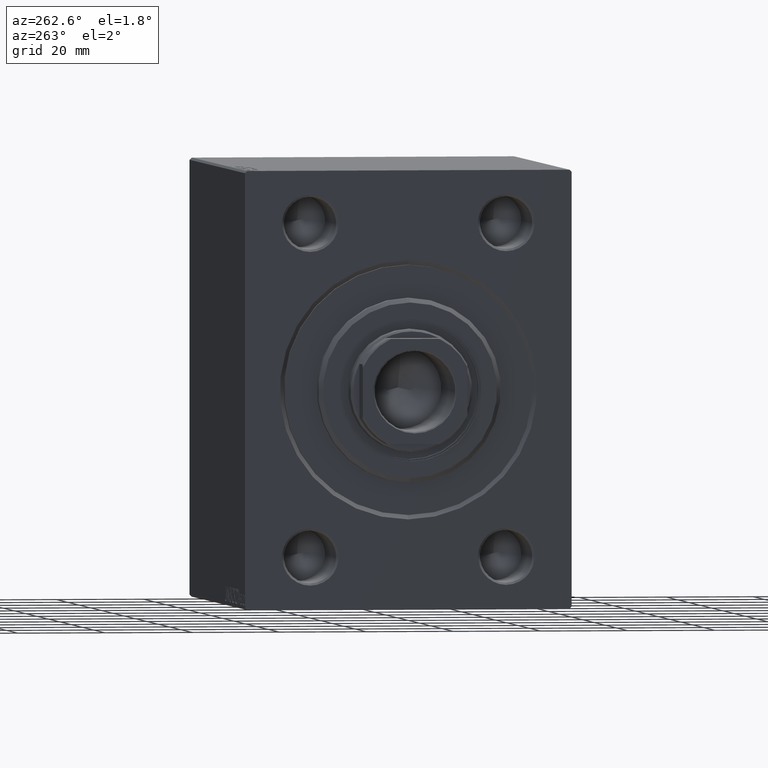
[diagram: clean part render]
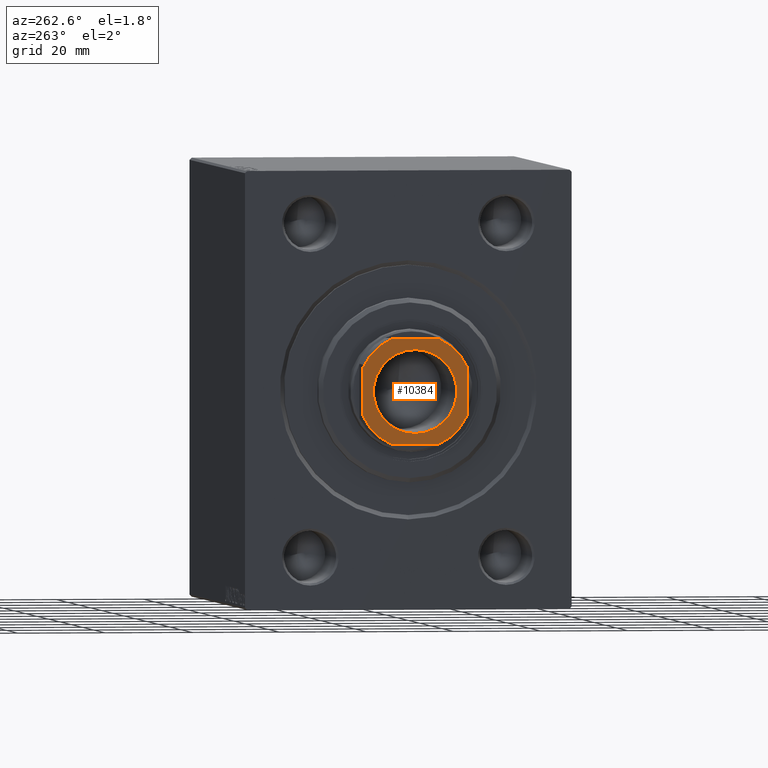
[diagram: same view with one face highlighted and labeled with its STEP entity id]
A machine part, auxiliary view. The second image highlights one B-rep face of the part: STEP entity #10384.
In plain terms, the highlighted planar face has unit normal (-1, 0, 0).
Its self-contained STEP definition (entity closure, byte-faithful):
#825 = CARTESIAN_POINT ( 'NONE',  ( 0.000000000000000000, 0.000000000000000000, 96.00000000000000000 ) ) ;
#1473 = CARTESIAN_POINT ( 'NONE',  ( 5.499090833947041901, 11.99999999999999645, 96.00000000000000000 ) ) ;
#1597 = PLANE ( 'NONE',  #25537 ) ;
#2958 = ORIENTED_EDGE ( 'NONE', *, *, #20635, .T. ) ;
#3075 = VERTEX_POINT ( 'NONE', #3188 ) ;
#3188 = CARTESIAN_POINT ( 'NONE',  ( -12.00000000000000000, -5.499090833947057888, 96.00000000000000000 ) ) ;
#3456 = VECTOR ( 'NONE', #4051, 1000.000000000000000 ) ;
#4051 = DIRECTION ( 'NONE',  ( -2.168404344971008868E-16, 1.000000000000000000, -0.000000000000000000 ) ) ;
#6151 = CARTESIAN_POINT ( 'NONE',  ( 9.549999999999988276, 0.000000000000000000, 96.00000000000000000 ) ) ;
#6208 = DIRECTION ( 'NONE',  ( 1.000000000000000000, 0.000000000000000000, 0.000000000000000000 ) ) ;
#6570 = ORIENTED_EDGE ( 'NONE', *, *, #41192, .T. ) ;
#7020 = LINE ( 'NONE', #37173, #13792 ) ;
#7045 = VERTEX_POINT ( 'NONE', #28082 ) ;
#7313 = AXIS2_PLACEMENT_3D ( 'NONE', #30472, #10008, #44182 ) ;
#7635 = AXIS2_PLACEMENT_3D ( 'NONE', #22692, #39561, #15704 ) ;
#7761 = EDGE_CURVE ( 'NONE', #28794, #7045, #9666, .T. ) ;
#8047 = LINE ( 'NONE', #35260, #44138 ) ;
#8959 = AXIS2_PLACEMENT_3D ( 'NONE', #15480, #29438, #32579 ) ;
#9594 = CARTESIAN_POINT ( 'NONE',  ( -11.99999999999999822, -12.00000000000000355, 96.00000000000000000 ) ) ;
#9666 = CIRCLE ( 'NONE', #8959, 13.20000000000000995 ) ;
#9734 = CIRCLE ( 'NONE', #34851, 13.20000000000002238 ) ;
#9776 = ORIENTED_EDGE ( 'NONE', *, *, #28263, .T. ) ;
#10008 = DIRECTION ( 'NONE',  ( -0.000000000000000000, 0.000000000000000000, 1.000000000000000000 ) ) ;
#10384 = ADVANCED_FACE ( 'NONE', ( #29040, #32627 ), #1597, .T. ) ;
#10598 = DIRECTION ( 'NONE',  ( -1.000000000000000000, -0.000000000000000000, -0.000000000000000000 ) ) ;
#11485 = ORIENTED_EDGE ( 'NONE', *, *, #41861, .T. ) ;
#11952 = VERTEX_POINT ( 'NONE', #40718 ) ;
#12309 = CARTESIAN_POINT ( 'NONE',  ( -5.499090833947052559, -12.00000000000000355, 96.00000000000000000 ) ) ;
#12733 = CARTESIAN_POINT ( 'NONE',  ( 0.000000000000000000, 0.000000000000000000, 96.00000000000000000 ) ) ;
#13132 = CARTESIAN_POINT ( 'NONE',  ( 11.99999999999999645, 11.99999999999999645, 96.00000000000000000 ) ) ;
#13792 = VECTOR ( 'NONE', #10598, 1000.000000000000000 ) ;
#14439 = VERTEX_POINT ( 'NONE', #12309 ) ;
#15480 = CARTESIAN_POINT ( 'NONE',  ( 0.000000000000000000, 0.000000000000000000, 96.00000000000000000 ) ) ;
#15629 = CARTESIAN_POINT ( 'NONE',  ( -5.499090833947067658, 11.99999999999999645, 96.00000000000000000 ) ) ;
#15704 = DIRECTION ( 'NONE',  ( 1.000000000000000000, 0.000000000000000000, 0.000000000000000000 ) ) ;
#16542 = DIRECTION ( 'NONE',  ( 1.000000000000000000, 0.000000000000000000, 0.000000000000000000 ) ) ;
#19575 = ORIENTED_EDGE ( 'NONE', *, *, #20310, .T. ) ;
#20310 = EDGE_CURVE ( 'NONE', #3075, #14439, #27438, .T. ) ;
#20635 = EDGE_CURVE ( 'NONE', #23019, #21405, #7020, .T. ) ;
#20649 = AXIS2_PLACEMENT_3D ( 'NONE', #825, #41745, #32077 ) ;
#21405 = VERTEX_POINT ( 'NONE', #15629 ) ;
#22041 = ORIENTED_EDGE ( 'NONE', *, *, #29376, .T. ) ;
#22161 = CARTESIAN_POINT ( 'NONE',  ( 0.000000000000000000, 0.000000000000000000, 96.00000000000000000 ) ) ;
#22508 = CARTESIAN_POINT ( 'NONE',  ( 0.000000000000000000, 0.000000000000000000, 96.00000000000000000 ) ) ;
#22692 = CARTESIAN_POINT ( 'NONE',  ( 0.000000000000000000, 0.000000000000000000, 96.00000000000000000 ) ) ;
#23019 = VERTEX_POINT ( 'NONE', #1473 ) ;
#23551 = CIRCLE ( 'NONE', #20649, 13.20000000000000995 ) ;
#24251 = AXIS2_PLACEMENT_3D ( 'NONE', #12733, #39057, #6208 ) ;
#25537 = AXIS2_PLACEMENT_3D ( 'NONE', #22508, #29702, #43408 ) ;
#27072 = LINE ( 'NONE', #13132, #3456 ) ;
#27438 = CIRCLE ( 'NONE', #7313, 13.20000000000002238 ) ;
#28082 = CARTESIAN_POINT ( 'NONE',  ( 12.00000000000000000, -5.499090833947034795, 96.00000000000000000 ) ) ;
#28263 = EDGE_CURVE ( 'NONE', #43128, #3075, #8047, .T. ) ;
#28510 = DIRECTION ( 'NONE',  ( 2.168404344971008868E-16, -1.000000000000000000, 0.000000000000000000 ) ) ;
#28794 = VERTEX_POINT ( 'NONE', #40576 ) ;
#29040 = FACE_BOUND ( 'NONE', #37931, .T. ) ;
#29376 = EDGE_CURVE ( 'NONE', #21405, #43128, #9734, .T. ) ;
#29438 = DIRECTION ( 'NONE',  ( -0.000000000000000000, 0.000000000000000000, 1.000000000000000000 ) ) ;
#29702 = DIRECTION ( 'NONE',  ( -0.000000000000000000, 0.000000000000000000, 1.000000000000000000 ) ) ;
#30355 = ORIENTED_EDGE ( 'NONE', *, *, #42088, .T. ) ;
#30472 = CARTESIAN_POINT ( 'NONE',  ( 0.000000000000000000, 0.000000000000000000, 96.00000000000000000 ) ) ;
#31271 = ORIENTED_EDGE ( 'NONE', *, *, #7761, .T. ) ;
#31914 = EDGE_CURVE ( 'NONE', #40891, #35089, #34918, .T. ) ;
#32077 = DIRECTION ( 'NONE',  ( 1.000000000000000000, 0.000000000000000000, 0.000000000000000000 ) ) ;
#32579 = DIRECTION ( 'NONE',  ( 1.000000000000000000, 0.000000000000000000, 0.000000000000000000 ) ) ;
#32627 = FACE_OUTER_BOUND ( 'NONE', #34421, .T. ) ;
#33069 = CARTESIAN_POINT ( 'NONE',  ( -9.549999999999988276, 1.169537693185720980E-15, 96.00000000000000000 ) ) ;
#33652 = LINE ( 'NONE', #9594, #42962 ) ;
#34421 = EDGE_LOOP ( 'NONE', ( #30355, #6570, #2958, #22041, #9776, #19575, #11485, #31271 ) ) ;
#34851 = AXIS2_PLACEMENT_3D ( 'NONE', #22161, #37993, #42388 ) ;
#34918 = CIRCLE ( 'NONE', #7635, 9.549999999999988276 ) ;
#35089 = VERTEX_POINT ( 'NONE', #6151 ) ;
#35260 = CARTESIAN_POINT ( 'NONE',  ( -12.00000000000000355, 11.99999999999999645, 96.00000000000000000 ) ) ;
#37173 = CARTESIAN_POINT ( 'NONE',  ( -12.00000000000000355, 11.99999999999999645, 96.00000000000000000 ) ) ;
#37931 = EDGE_LOOP ( 'NONE', ( #41213, #40230 ) ) ;
#37993 = DIRECTION ( 'NONE',  ( -0.000000000000000000, 0.000000000000000000, 1.000000000000000000 ) ) ;
#38309 = CARTESIAN_POINT ( 'NONE',  ( -12.00000000000000178, 5.499090833947057000, 96.00000000000000000 ) ) ;
#39057 = DIRECTION ( 'NONE',  ( 0.000000000000000000, -0.000000000000000000, -1.000000000000000000 ) ) ;
#39561 = DIRECTION ( 'NONE',  ( 0.000000000000000000, -0.000000000000000000, -1.000000000000000000 ) ) ;
#40230 = ORIENTED_EDGE ( 'NONE', *, *, #31914, .T. ) ;
#40576 = CARTESIAN_POINT ( 'NONE',  ( 5.499090833947025914, -12.00000000000000355, 96.00000000000000000 ) ) ;
#40718 = CARTESIAN_POINT ( 'NONE',  ( 11.99999999999999645, 5.499090833947039236, 96.00000000000000000 ) ) ;
#40891 = VERTEX_POINT ( 'NONE', #33069 ) ;
#41192 = EDGE_CURVE ( 'NONE', #11952, #23019, #23551, .T. ) ;
#41213 = ORIENTED_EDGE ( 'NONE', *, *, #41420, .T. ) ;
#41420 = EDGE_CURVE ( 'NONE', #35089, #40891, #43639, .T. ) ;
#41745 = DIRECTION ( 'NONE',  ( -0.000000000000000000, 0.000000000000000000, 1.000000000000000000 ) ) ;
#41861 = EDGE_CURVE ( 'NONE', #14439, #28794, #33652, .T. ) ;
#42088 = EDGE_CURVE ( 'NONE', #7045, #11952, #27072, .T. ) ;
#42388 = DIRECTION ( 'NONE',  ( 1.000000000000000000, 0.000000000000000000, 0.000000000000000000 ) ) ;
#42962 = VECTOR ( 'NONE', #16542, 1000.000000000000000 ) ;
#43128 = VERTEX_POINT ( 'NONE', #38309 ) ;
#43408 = DIRECTION ( 'NONE',  ( 1.000000000000000000, 0.000000000000000000, 0.000000000000000000 ) ) ;
#43639 = CIRCLE ( 'NONE', #24251, 9.549999999999988276 ) ;
#44138 = VECTOR ( 'NONE', #28510, 1000.000000000000000 ) ;
#44182 = DIRECTION ( 'NONE',  ( 1.000000000000000000, 0.000000000000000000, 0.000000000000000000 ) ) ;